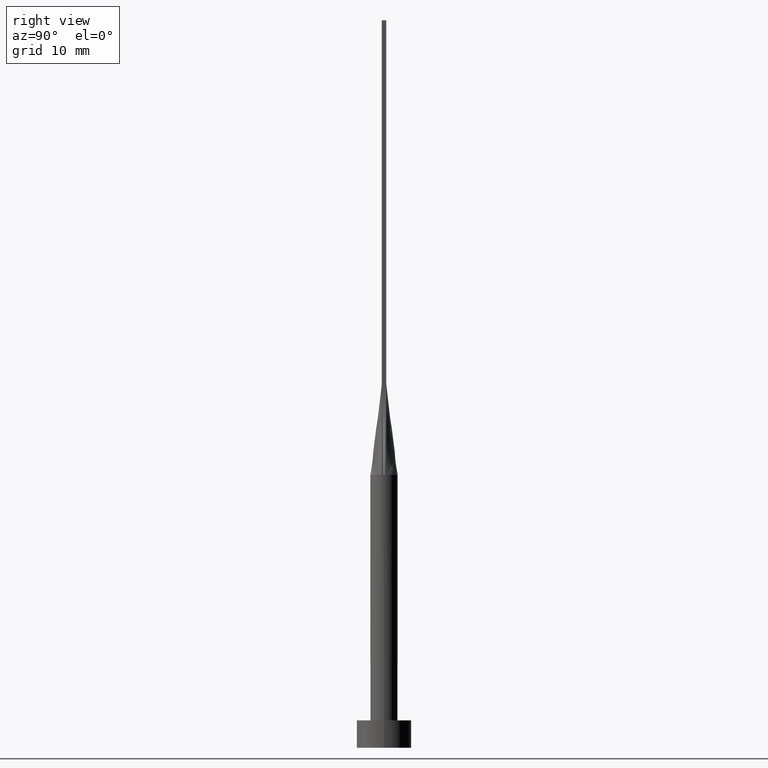
[diagram: clean part render]
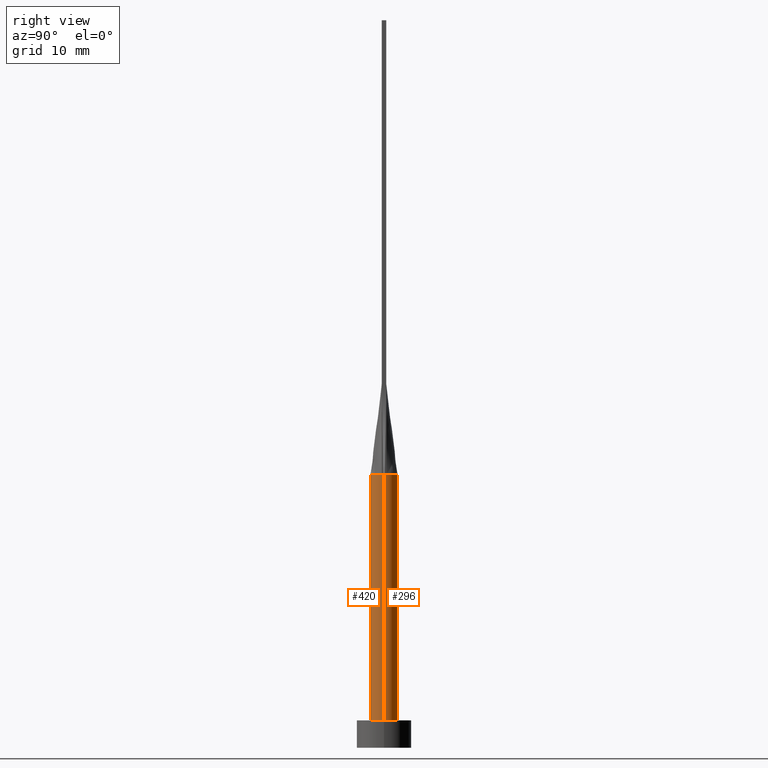
[diagram: same view with one multi-face feature highlighted, each face labeled with its STEP entity id]
A machine part, right view. The highlighted faces form ONE feature: a constant-radius fillet chain: 2 tangent blend faces with common blend radius 1.5 mm. The faces share edges in the B-rep.
Their STEP definitions:
[1] entity #296 (Cylinder):
#6 = CARTESIAN_POINT ( 'NONE',  ( -0.4178861784692550208, 1.454504042781961326, 30.00000000000000355 ) ) ;
#15 = EDGE_CURVE ( 'NONE', #156, #159, #186, .T. ) ;
#18 = CYLINDRICAL_SURFACE ( 'NONE', #58, 1.500000000000000222 ) ;
#31 = DIRECTION ( 'NONE',  ( 0.000000000000000000, 0.000000000000000000, 1.000000000000000000 ) ) ;
#32 = CIRCLE ( 'NONE', #375, 1.500000000000000222 ) ;
#35 = EDGE_CURVE ( 'NONE', #153, #156, #526, .T. ) ;
#52 = CARTESIAN_POINT ( 'NONE',  ( 0.7852726932053988307, 1.293660568283136358, 30.00000000000000711 ) ) ;
#58 = AXIS2_PLACEMENT_3D ( 'NONE', #434, #79, #266 ) ;
#59 = VERTEX_POINT ( 'NONE', #410 ) ;
#77 = ORIENTED_EDGE ( 'NONE', *, *, #205, .F. ) ;
#79 = DIRECTION ( 'NONE',  ( -0.000000000000000000, -0.000000000000000000, -1.000000000000000000 ) ) ;
#82 = EDGE_CURVE ( 'NONE', #384, #153, #158, .T. ) ;
#92 = CARTESIAN_POINT ( 'NONE',  ( -1.455009719257779111, 0.3848231641531745795, 30.00000000000000000 ) ) ;
#98 = CARTESIAN_POINT ( 'NONE',  ( -1.285860877433235183, 0.7868275653575075301, 30.00000000000000000 ) ) ;
#99 = CARTESIAN_POINT ( 'NONE',  ( 0.2093118330951408979, 1.500000000000000666, 30.00000000000000355 ) ) ;
#100 = CARTESIAN_POINT ( 'NONE',  ( -1.476774769252511055, 0.2637095436881764510, 30.00000000000000000 ) ) ;
#110 = DIRECTION ( 'NONE',  ( 0.000000000000000000, 0.000000000000000000, 1.000000000000000000 ) ) ;
#119 = DIRECTION ( 'NONE',  ( 1.000000000000000000, 0.000000000000000000, 0.000000000000000000 ) ) ;
#122 = VECTOR ( 'NONE', #406, 1000.000000000000000 ) ;
#137 = ORIENTED_EDGE ( 'NONE', *, *, #15, .F. ) ;
#144 = CARTESIAN_POINT ( 'NONE',  ( 1.285860877433235405, 0.7868275653575075301, 30.00000000000000711 ) ) ;
#153 = VERTEX_POINT ( 'NONE', #471 ) ;
#156 = VERTEX_POINT ( 'NONE', #301 ) ;
#158 = B_SPLINE_CURVE_WITH_KNOTS ( 'NONE', 3,
 ( #283, #500, #545, #144, #326, #457, #52, #243, #99, #413, #6, #227, #414, #327, #98, #284, #92, #100 ),
 .UNSPECIFIED., .F., .F.,
 ( 4, 2, 2, 2, 2, 2, 2, 2, 4 ),
 ( 0.000000000000000000, 0.1249999999999999167, 0.2499999999999998335, 0.3749999999999998335, 0.4999999999999998890, 0.6249999999999998890, 0.7499999999999998890, 0.8750000000000000000, 1.000000000000000000 ),
 .UNSPECIFIED. ) ;
#159 = VERTEX_POINT ( 'NONE', #176 ) ;
#162 = DIRECTION ( 'NONE',  ( 0.000000000000000000, 0.000000000000000000, 1.000000000000000000 ) ) ;
#167 = DIRECTION ( 'NONE',  ( 1.000000000000000000, 0.000000000000000000, 0.000000000000000000 ) ) ;
#176 = CARTESIAN_POINT ( 'NONE',  ( -1.500000000000000222, 0.000000000000000000, 3.000000000000000000 ) ) ;
#186 = LINE ( 'NONE', #319, #122 ) ;
#194 = AXIS2_PLACEMENT_3D ( 'NONE', #474, #31, #309 ) ;
#197 = ORIENTED_EDGE ( 'NONE', *, *, #82, .F. ) ;
#205 = EDGE_CURVE ( 'NONE', #59, #384, #32, .T. ) ;
#206 = ORIENTED_EDGE ( 'NONE', *, *, #216, .T. ) ;
#216 = EDGE_CURVE ( 'NONE', #465, #159, #333, .T. ) ;
#227 = CARTESIAN_POINT ( 'NONE',  ( -0.7852726932053990527, 1.293660568283136136, 30.00000000000000355 ) ) ;
#243 = CARTESIAN_POINT ( 'NONE',  ( 0.4178861784692547432, 1.454504042781961770, 30.00000000000001421 ) ) ;
#266 = DIRECTION ( 'NONE',  ( -1.000000000000000000, 0.000000000000000000, 0.000000000000000000 ) ) ;
#283 = CARTESIAN_POINT ( 'NONE',  ( 1.476765312825354837, 0.2637079867918904474, 30.00000000000000000 ) ) ;
#284 = CARTESIAN_POINT ( 'NONE',  ( -1.416287091352355976, 0.5163978007200225040, 30.00000000000001066 ) ) ;
#288 = EDGE_LOOP ( 'NONE', ( #77, #460, #206, #137, #489, #197 ) ) ;
#296 = ADVANCED_FACE ( 'NONE', ( #299 ), #18, .T. ) ;
#299 = FACE_OUTER_BOUND ( 'NONE', #288, .T. ) ;
#301 = CARTESIAN_POINT ( 'NONE',  ( -1.499909062348296462, -1.026848616785427865E-15, 30.00000000000000000 ) ) ;
#309 = DIRECTION ( 'NONE',  ( 1.000000000000000000, 0.000000000000000000, 0.000000000000000000 ) ) ;
#316 = DIRECTION ( 'NONE',  ( -0.000000000000000000, -0.000000000000000000, -1.000000000000000000 ) ) ;
#319 = CARTESIAN_POINT ( 'NONE',  ( -1.500000000000000222, 0.000000000000000000, 30.00000000000000000 ) ) ;
#326 = CARTESIAN_POINT ( 'NONE',  ( 1.193588737715979509, 0.9257784320005622014, 30.00000000000000355 ) ) ;
#327 = CARTESIAN_POINT ( 'NONE',  ( -1.193588737715979731, 0.9257784320005616463, 29.99999999999999645 ) ) ;
#333 = CIRCLE ( 'NONE', #194, 1.500000000000000222 ) ;
#375 = AXIS2_PLACEMENT_3D ( 'NONE', #482, #162, #119 ) ;
#380 = VECTOR ( 'NONE', #316, 1000.000000000000000 ) ;
#384 = VERTEX_POINT ( 'NONE', #404 ) ;
#404 = CARTESIAN_POINT ( 'NONE',  ( 1.476765312825354837, 0.2637079867918904474, 30.00000000000000000 ) ) ;
#406 = DIRECTION ( 'NONE',  ( -0.000000000000000000, -0.000000000000000000, -1.000000000000000000 ) ) ;
#410 = CARTESIAN_POINT ( 'NONE',  ( 1.499909062348296462, 3.515891419768138559E-16, 30.00000000000000000 ) ) ;
#413 = CARTESIAN_POINT ( 'NONE',  ( -0.2093118330951410921, 1.500000000000000222, 30.00000000000000000 ) ) ;
#414 = CARTESIAN_POINT ( 'NONE',  ( -0.9436169880431073409, 1.179536671679307647, 30.00000000000000000 ) ) ;
#434 = CARTESIAN_POINT ( 'NONE',  ( 0.000000000000000000, 0.000000000000000000, 30.00000000000000000 ) ) ;
#442 = LINE ( 'NONE', #449, #380 ) ;
#449 = CARTESIAN_POINT ( 'NONE',  ( 1.500000000000000222, 1.836970198721030181E-16, 30.00000000000000000 ) ) ;
#457 = CARTESIAN_POINT ( 'NONE',  ( 0.9436169880431070078, 1.179536671679307869, 30.00000000000000000 ) ) ;
#460 = ORIENTED_EDGE ( 'NONE', *, *, #501, .T. ) ;
#465 = VERTEX_POINT ( 'NONE', #487 ) ;
#471 = CARTESIAN_POINT ( 'NONE',  ( -1.476774769252511055, 0.2637095436881764510, 30.00000000000000000 ) ) ;
#474 = CARTESIAN_POINT ( 'NONE',  ( 0.000000000000000000, 0.000000000000000000, 3.000000000000000000 ) ) ;
#482 = CARTESIAN_POINT ( 'NONE',  ( 0.000000000000000000, 0.000000000000000000, 30.00000000000000000 ) ) ;
#487 = CARTESIAN_POINT ( 'NONE',  ( 1.500000000000000222, 1.836970198721030181E-16, 3.000000000000000000 ) ) ;
#489 = ORIENTED_EDGE ( 'NONE', *, *, #35, .F. ) ;
#500 = CARTESIAN_POINT ( 'NONE',  ( 1.455009719257779111, 0.3848231641531748570, 30.00000000000000355 ) ) ;
#501 = EDGE_CURVE ( 'NONE', #59, #465, #442, .T. ) ;
#513 = AXIS2_PLACEMENT_3D ( 'NONE', #566, #110, #167 ) ;
#526 = CIRCLE ( 'NONE', #513, 1.500000000000000222 ) ;
#545 = CARTESIAN_POINT ( 'NONE',  ( 1.416287091352355976, 0.5163978007200227260, 30.00000000000000000 ) ) ;
#566 = CARTESIAN_POINT ( 'NONE',  ( 0.000000000000000000, 0.000000000000000000, 30.00000000000000000 ) ) ;
[2] entity #420 (Cylinder):
#15 = EDGE_CURVE ( 'NONE', #156, #159, #186, .T. ) ;
#25 = CARTESIAN_POINT ( 'NONE',  ( 1.476789766994309527, -0.2637122300648489515, 30.00000000000000000 ) ) ;
#29 = CARTESIAN_POINT ( 'NONE',  ( 0.000000000000000000, 0.000000000000000000, 30.00000000000000000 ) ) ;
#33 = EDGE_CURVE ( 'NONE', #568, #59, #467, .T. ) ;
#41 = ORIENTED_EDGE ( 'NONE', *, *, #46, .T. ) ;
#46 = EDGE_CURVE ( 'NONE', #159, #465, #453, .T. ) ;
#59 = VERTEX_POINT ( 'NONE', #410 ) ;
#67 = CARTESIAN_POINT ( 'NONE',  ( 0.000000000000000000, 0.000000000000000000, 3.000000000000000000 ) ) ;
#84 = DIRECTION ( 'NONE',  ( 0.000000000000000000, 0.000000000000000000, 1.000000000000000000 ) ) ;
#94 = CARTESIAN_POINT ( 'NONE',  ( 0.000000000000000000, 0.000000000000000000, 30.00000000000000000 ) ) ;
#109 = ORIENTED_EDGE ( 'NONE', *, *, #193, .F. ) ;
#122 = VECTOR ( 'NONE', #406, 1000.000000000000000 ) ;
#128 = CARTESIAN_POINT ( 'NONE',  ( -1.476780214353118348, -0.2637106662004926605, 30.00000000000000000 ) ) ;
#130 = DIRECTION ( 'NONE',  ( 1.000000000000000000, 0.000000000000000000, 0.000000000000000000 ) ) ;
#151 = CIRCLE ( 'NONE', #250, 1.500000000000000222 ) ;
#156 = VERTEX_POINT ( 'NONE', #301 ) ;
#159 = VERTEX_POINT ( 'NONE', #176 ) ;
#176 = CARTESIAN_POINT ( 'NONE',  ( -1.500000000000000222, 0.000000000000000000, 3.000000000000000000 ) ) ;
#186 = LINE ( 'NONE', #319, #122 ) ;
#193 = EDGE_CURVE ( 'NONE', #464, #568, #282, .T. ) ;
#196 = EDGE_LOOP ( 'NONE', ( #245, #292, #109, #473, #551, #41 ) ) ;
#245 = ORIENTED_EDGE ( 'NONE', *, *, #501, .F. ) ;
#250 = AXIS2_PLACEMENT_3D ( 'NONE', #277, #84, #130 ) ;
#252 = DIRECTION ( 'NONE',  ( 0.000000000000000000, 0.000000000000000000, 1.000000000000000000 ) ) ;
#273 = DIRECTION ( 'NONE',  ( -1.000000000000000000, 0.000000000000000000, 0.000000000000000000 ) ) ;
#277 = CARTESIAN_POINT ( 'NONE',  ( 0.000000000000000000, 0.000000000000000000, 30.00000000000000000 ) ) ;
#282 = CIRCLE ( 'NONE', #294, 1.500000000000000222 ) ;
#292 = ORIENTED_EDGE ( 'NONE', *, *, #33, .F. ) ;
#294 = AXIS2_PLACEMENT_3D ( 'NONE', #29, #395, #310 ) ;
#301 = CARTESIAN_POINT ( 'NONE',  ( -1.499909062348296462, -1.026848616785427865E-15, 30.00000000000000000 ) ) ;
#310 = DIRECTION ( 'NONE',  ( 1.000000000000000000, 0.000000000000000000, 0.000000000000000000 ) ) ;
#315 = AXIS2_PLACEMENT_3D ( 'NONE', #341, #475, #447 ) ;
#316 = DIRECTION ( 'NONE',  ( -0.000000000000000000, -0.000000000000000000, -1.000000000000000000 ) ) ;
#319 = CARTESIAN_POINT ( 'NONE',  ( -1.500000000000000222, 0.000000000000000000, 30.00000000000000000 ) ) ;
#321 = DIRECTION ( 'NONE',  ( -0.000000000000000000, -0.000000000000000000, -1.000000000000000000 ) ) ;
#328 = AXIS2_PLACEMENT_3D ( 'NONE', #94, #321, #273 ) ;
#341 = CARTESIAN_POINT ( 'NONE',  ( 0.000000000000000000, 0.000000000000000000, 30.00000000000000000 ) ) ;
#361 = DIRECTION ( 'NONE',  ( 1.000000000000000000, 0.000000000000000000, 0.000000000000000000 ) ) ;
#363 = CYLINDRICAL_SURFACE ( 'NONE', #328, 1.500000000000000222 ) ;
#368 = FACE_OUTER_BOUND ( 'NONE', #196, .T. ) ;
#380 = VECTOR ( 'NONE', #316, 1000.000000000000000 ) ;
#395 = DIRECTION ( 'NONE',  ( 0.000000000000000000, 0.000000000000000000, 1.000000000000000000 ) ) ;
#406 = DIRECTION ( 'NONE',  ( -0.000000000000000000, -0.000000000000000000, -1.000000000000000000 ) ) ;
#407 = EDGE_CURVE ( 'NONE', #156, #464, #151, .T. ) ;
#410 = CARTESIAN_POINT ( 'NONE',  ( 1.499909062348296462, 3.515891419768138559E-16, 30.00000000000000000 ) ) ;
#420 = ADVANCED_FACE ( 'NONE', ( #368 ), #363, .T. ) ;
#440 = AXIS2_PLACEMENT_3D ( 'NONE', #67, #252, #361 ) ;
#442 = LINE ( 'NONE', #449, #380 ) ;
#447 = DIRECTION ( 'NONE',  ( 1.000000000000000000, -7.105427357601001859E-15, 0.000000000000000000 ) ) ;
#449 = CARTESIAN_POINT ( 'NONE',  ( 1.500000000000000222, 1.836970198721030181E-16, 30.00000000000000000 ) ) ;
#453 = CIRCLE ( 'NONE', #440, 1.500000000000000222 ) ;
#464 = VERTEX_POINT ( 'NONE', #128 ) ;
#465 = VERTEX_POINT ( 'NONE', #487 ) ;
#467 = CIRCLE ( 'NONE', #315, 1.500000000000000222 ) ;
#473 = ORIENTED_EDGE ( 'NONE', *, *, #407, .F. ) ;
#475 = DIRECTION ( 'NONE',  ( 0.000000000000000000, 0.000000000000000000, 1.000000000000000000 ) ) ;
#487 = CARTESIAN_POINT ( 'NONE',  ( 1.500000000000000222, 1.836970198721030181E-16, 3.000000000000000000 ) ) ;
#501 = EDGE_CURVE ( 'NONE', #59, #465, #442, .T. ) ;
#551 = ORIENTED_EDGE ( 'NONE', *, *, #15, .T. ) ;
#568 = VERTEX_POINT ( 'NONE', #25 ) ;